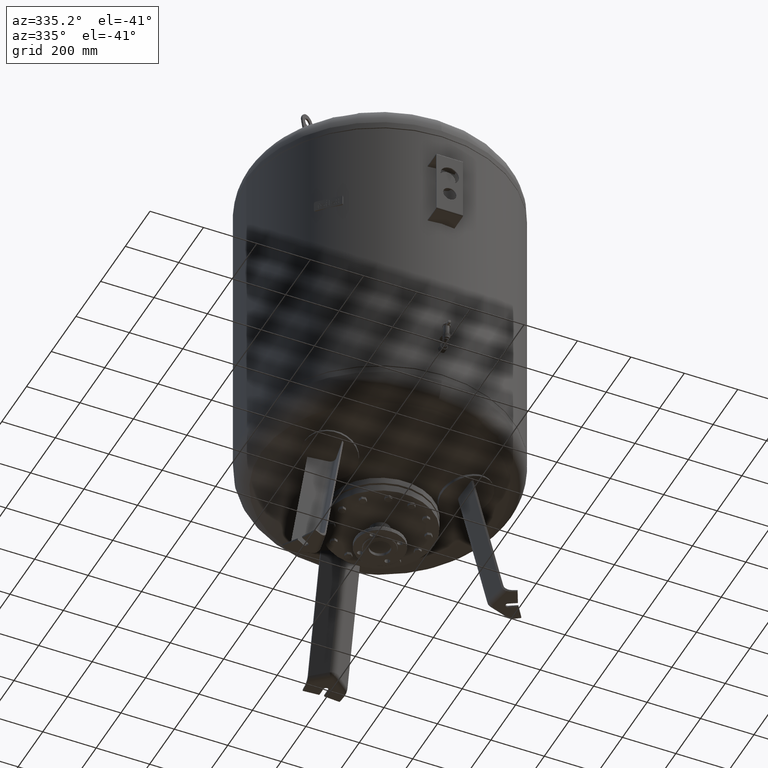
[diagram: clean part render]
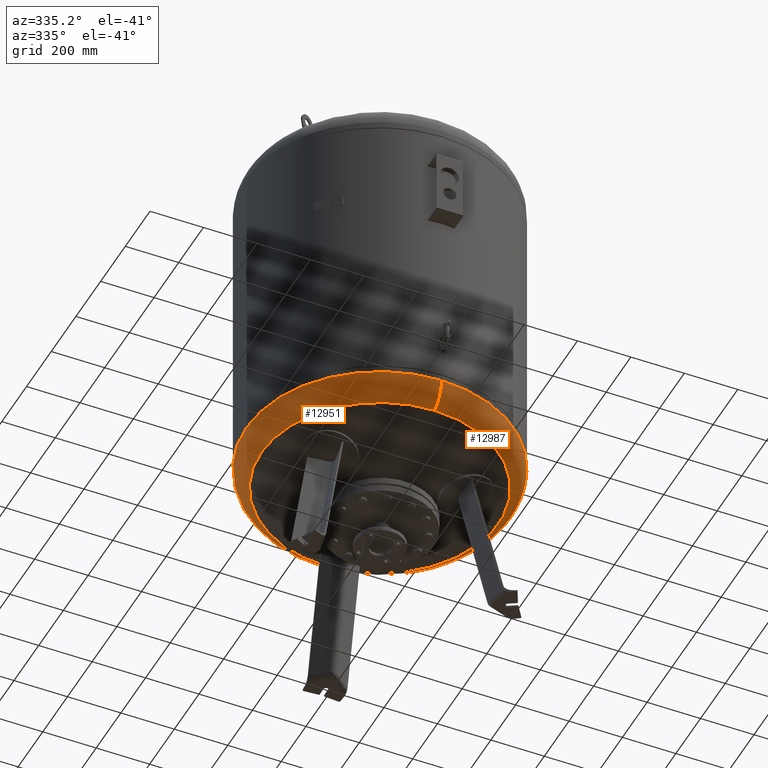
[diagram: same view with one multi-face feature highlighted, each face labeled with its STEP entity id]
A machine part, auxiliary view. The highlighted faces form ONE feature: a constant-radius fillet chain: 2 tangent blend faces with common blend radius 100.6 mm. The faces share edges in the B-rep.
Their STEP definitions:
[1] entity #12951 (Torus):
#12856=CARTESIAN_POINT('',(-500.0,-3.553717E-014,652.455355072719390));
#12857=VERTEX_POINT('',#12856);
#12881=CARTESIAN_POINT('',(-6.123032E-014,499.999999999999940,652.455355072719610));
#12882=VERTEX_POINT('',#12881);
#12890=CARTESIAN_POINT('',(-2.595210E-014,-3.553717E-014,652.455355072719500));
#12891=DIRECTION('',(0.0,0.0,1.0));
#12892=DIRECTION('',(-1.0,0.0,0.0));
#12893=AXIS2_PLACEMENT_3D('',#12890,#12891,#12892);
#12894=CIRCLE('',#12893,500.0);
#12895=EDGE_CURVE('',#12882,#12857,#12894,.T.);
#12900=CARTESIAN_POINT('',(0.0,-3.553717E-014,652.455355072719610));
#12901=DIRECTION('',(-1.341503E-016,-1.836970E-016,1.0));
#12902=DIRECTION('',(0.0,-1.0,0.0));
#12903=AXIS2_PLACEMENT_3D('',#12900,#12901,#12902);
#12904=TOROIDAL_SURFACE('',#12903,399.399999999999920,100.600000000000010);
#12905=CARTESIAN_POINT('',(3.381269E-030,-500.000000000000060,652.455355072719390));
#12906=VERTEX_POINT('',#12905);
#12907=CARTESIAN_POINT('',(1.211146E-014,-443.777777777777600,562.172616747466120));
#12908=VERTEX_POINT('',#12907);
#12909=CARTESIAN_POINT('',(0.0,-399.399999999999980,652.455355072719500));
#12910=DIRECTION('',(1.0,0.0,0.0));
#12911=DIRECTION('',(0.0,-1.0,0.0));
#12912=AXIS2_PLACEMENT_3D('',#12909,#12910,#12911);
#12913=CIRCLE('',#12912,100.600000000000010);
#12914=EDGE_CURVE('',#12906,#12908,#12913,.T.);
#12915=ORIENTED_EDGE('',*,*,#12914,.F.);
#12916=CARTESIAN_POINT('',(-2.595210E-014,-3.553717E-014,652.455355072719500));
#12917=DIRECTION('',(0.0,0.0,1.0));
#12918=DIRECTION('',(-1.0,0.0,0.0));
#12919=AXIS2_PLACEMENT_3D('',#12916,#12917,#12918);
#12920=CIRCLE('',#12919,500.0);
#12921=EDGE_CURVE('',#12857,#12906,#12920,.T.);
#12922=ORIENTED_EDGE('',*,*,#12921,.F.);
#12923=ORIENTED_EDGE('',*,*,#12895,.F.);
#12924=CARTESIAN_POINT('',(-4.223385E-014,443.777777777777600,562.172616747466350));
#12925=VERTEX_POINT('',#12924);
#12926=CARTESIAN_POINT('',(-4.891078E-014,399.399999999999860,652.455355072719730));
#12927=DIRECTION('',(-1.0,0.0,0.0));
#12928=DIRECTION('',(0.0,1.0,0.0));
#12929=AXIS2_PLACEMENT_3D('',#12926,#12927,#12928);
#12930=CIRCLE('',#12929,100.600000000000010);
#12931=EDGE_CURVE('',#12882,#12925,#12930,.T.);
#12932=ORIENTED_EDGE('',*,*,#12931,.T.);
#12933=CARTESIAN_POINT('',(-443.777777777777600,-1.895250E-014,562.172616747466240));
#12934=VERTEX_POINT('',#12933);
#12935=CARTESIAN_POINT('',(-1.384064E-014,-1.895250E-014,562.172616747466240));
#12936=DIRECTION('',(0.0,0.0,1.0));
#12937=DIRECTION('',(-1.0,0.0,0.0));
#12938=AXIS2_PLACEMENT_3D('',#12935,#12936,#12937);
#12939=CIRCLE('',#12938,443.777777777777600);
#12940=EDGE_CURVE('',#12925,#12934,#12939,.T.);
#12941=ORIENTED_EDGE('',*,*,#12940,.T.);
#12942=CARTESIAN_POINT('',(-1.384064E-014,-1.895250E-014,562.172616747466240));
#12943=DIRECTION('',(0.0,0.0,1.0));
#12944=DIRECTION('',(-1.0,0.0,0.0));
#12945=AXIS2_PLACEMENT_3D('',#12942,#12943,#12944);
#12946=CIRCLE('',#12945,443.777777777777600);
#12947=EDGE_CURVE('',#12934,#12908,#12946,.T.);
#12948=ORIENTED_EDGE('',*,*,#12947,.T.);
#12949=EDGE_LOOP('',(#12915,#12922,#12923,#12932,#12941,#12948));
#12950=FACE_OUTER_BOUND('',#12949,.T.);
#12951=ADVANCED_FACE('',(#12950),#12904,.T.);
[2] entity #12987 (Torus):
#12873=CARTESIAN_POINT('',(500.0,2.569315E-014,652.455355072719500));
#12874=VERTEX_POINT('',#12873);
#12881=CARTESIAN_POINT('',(-6.123032E-014,499.999999999999940,652.455355072719610));
#12882=VERTEX_POINT('',#12881);
#12883=CARTESIAN_POINT('',(-2.595210E-014,-3.553717E-014,652.455355072719500));
#12884=DIRECTION('',(0.0,0.0,1.0));
#12885=DIRECTION('',(-1.0,0.0,0.0));
#12886=AXIS2_PLACEMENT_3D('',#12883,#12884,#12885);
#12887=CIRCLE('',#12886,500.0);
#12888=EDGE_CURVE('',#12874,#12882,#12887,.T.);
#12905=CARTESIAN_POINT('',(3.381269E-030,-500.000000000000060,652.455355072719390));
#12906=VERTEX_POINT('',#12905);
#12907=CARTESIAN_POINT('',(1.211146E-014,-443.777777777777600,562.172616747466120));
#12908=VERTEX_POINT('',#12907);
#12909=CARTESIAN_POINT('',(0.0,-399.399999999999980,652.455355072719500));
#12910=DIRECTION('',(1.0,0.0,0.0));
#12911=DIRECTION('',(0.0,-1.0,0.0));
#12912=AXIS2_PLACEMENT_3D('',#12909,#12910,#12911);
#12913=CIRCLE('',#12912,100.600000000000010);
#12914=EDGE_CURVE('',#12906,#12908,#12913,.T.);
#12924=CARTESIAN_POINT('',(-4.223385E-014,443.777777777777600,562.172616747466350));
#12925=VERTEX_POINT('',#12924);
#12926=CARTESIAN_POINT('',(-4.891078E-014,399.399999999999860,652.455355072719730));
#12927=DIRECTION('',(-1.0,0.0,0.0));
#12928=DIRECTION('',(0.0,1.0,0.0));
#12929=AXIS2_PLACEMENT_3D('',#12926,#12927,#12928);
#12930=CIRCLE('',#12929,100.600000000000010);
#12931=EDGE_CURVE('',#12882,#12925,#12930,.T.);
#12959=CARTESIAN_POINT('',(-1.384064E-014,-1.895250E-014,562.172616747466240));
#12960=DIRECTION('',(0.0,0.0,1.0));
#12961=DIRECTION('',(-1.0,0.0,0.0));
#12962=AXIS2_PLACEMENT_3D('',#12959,#12960,#12961);
#12963=CIRCLE('',#12962,443.777777777777600);
#12964=EDGE_CURVE('',#12908,#12925,#12963,.T.);
#12969=CARTESIAN_POINT('',(0.0,-3.553717E-014,652.455355072719610));
#12970=DIRECTION('',(-1.341503E-016,-1.836970E-016,1.0));
#12971=DIRECTION('',(0.0,-1.0,0.0));
#12972=AXIS2_PLACEMENT_3D('',#12969,#12970,#12971);
#12973=TOROIDAL_SURFACE('',#12972,399.399999999999920,100.600000000000010);
#12974=ORIENTED_EDGE('',*,*,#12914,.T.);
#12975=ORIENTED_EDGE('',*,*,#12964,.T.);
#12976=ORIENTED_EDGE('',*,*,#12931,.F.);
#12977=ORIENTED_EDGE('',*,*,#12888,.F.);
#12978=CARTESIAN_POINT('',(-2.595210E-014,-3.553717E-014,652.455355072719500));
#12979=DIRECTION('',(0.0,0.0,1.0));
#12980=DIRECTION('',(-1.0,0.0,0.0));
#12981=AXIS2_PLACEMENT_3D('',#12978,#12979,#12980);
#12982=CIRCLE('',#12981,500.0);
#12983=EDGE_CURVE('',#12906,#12874,#12982,.T.);
#12984=ORIENTED_EDGE('',*,*,#12983,.F.);
#12985=EDGE_LOOP('',(#12974,#12975,#12976,#12977,#12984));
#12986=FACE_OUTER_BOUND('',#12985,.T.);
#12987=ADVANCED_FACE('',(#12986),#12973,.T.);